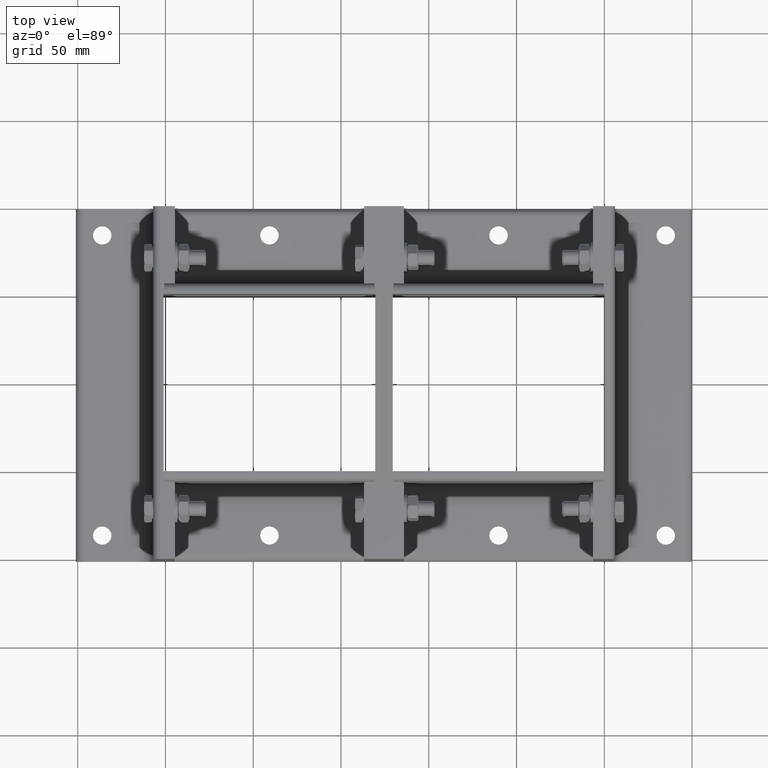
[diagram: clean part render]
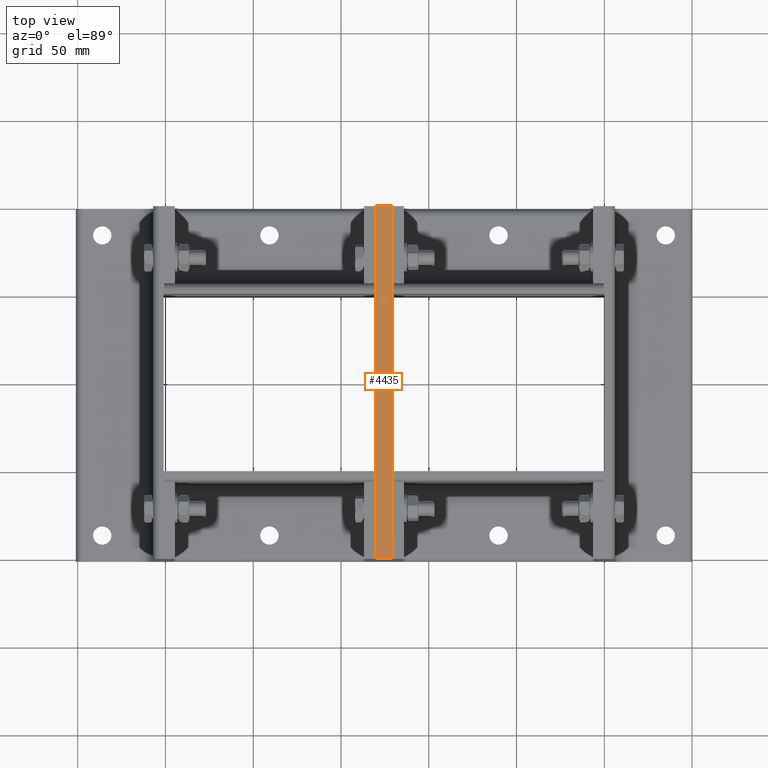
[diagram: same view with one face highlighted and labeled with its STEP entity id]
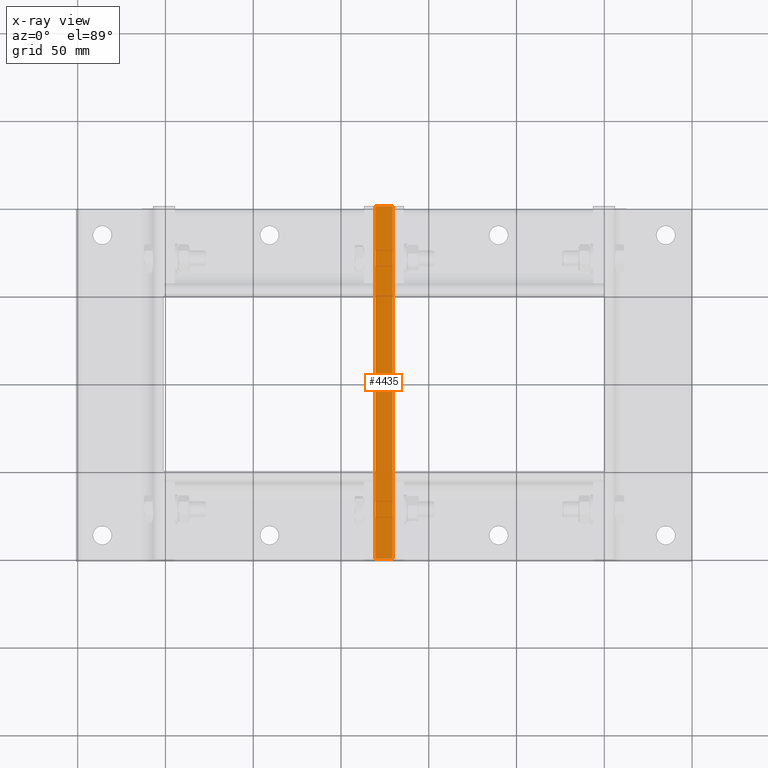
[diagram: x-ray of the same camera — body ghosted, the highlighted face saturated]
A machine part, top view. The second image highlights one B-rep face of the part: STEP entity #4435.
The next image is the same camera in x-ray: the body ghosted, the highlighted face saturated — about 0% of this face is hidden behind the body in this view.
In plain terms, the highlighted planar face has unit normal (-0, 0, 1).
Its self-contained STEP definition (entity closure, byte-faithful):
#4396=CARTESIAN_POINT('',(-100.5,0.0,60.000000000000028));
#4397=DIRECTION('',(0.0,0.0,1.0));
#4398=DIRECTION('',(1.0,0.0,0.0));
#4399=AXIS2_PLACEMENT_3D('',#4396,#4397,#4398);
#4400=PLANE('',#4399);
#4401=CARTESIAN_POINT('',(100.5,0.0,59.999999999999972));
#4402=VERTEX_POINT('',#4401);
#4403=CARTESIAN_POINT('',(-100.5,0.0,60.000000000000028));
#4404=VERTEX_POINT('',#4403);
#4405=CARTESIAN_POINT('',(100.5,0.0,59.999999999999972));
#4406=DIRECTION('',(-1.0,0.0,0.0));
#4407=VECTOR('',#4406,201.0);
#4408=LINE('',#4405,#4407);
#4409=EDGE_CURVE('',#4402,#4404,#4408,.T.);
#4410=ORIENTED_EDGE('',*,*,#4409,.F.);
#4411=CARTESIAN_POINT('',(100.5,10.0,59.999999999999972));
#4412=VERTEX_POINT('',#4411);
#4413=CARTESIAN_POINT('',(100.5,0.0,59.999999999999972));
#4414=DIRECTION('',(0.0,1.0,0.0));
#4415=VECTOR('',#4414,10.0);
#4416=LINE('',#4413,#4415);
#4417=EDGE_CURVE('',#4402,#4412,#4416,.T.);
#4418=ORIENTED_EDGE('',*,*,#4417,.T.);
#4419=CARTESIAN_POINT('',(-100.5,10.0,60.000000000000028));
#4420=VERTEX_POINT('',#4419);
#4421=CARTESIAN_POINT('',(-100.5,10.0,60.000000000000021));
#4422=DIRECTION('',(1.0,0.0,0.0));
#4423=VECTOR('',#4422,201.0);
#4424=LINE('',#4421,#4423);
#4425=EDGE_CURVE('',#4420,#4412,#4424,.T.);
#4426=ORIENTED_EDGE('',*,*,#4425,.F.);
#4427=CARTESIAN_POINT('',(-100.5,0.0,60.000000000000028));
#4428=DIRECTION('',(0.0,1.0,0.0));
#4429=VECTOR('',#4428,10.0);
#4430=LINE('',#4427,#4429);
#4431=EDGE_CURVE('',#4404,#4420,#4430,.T.);
#4432=ORIENTED_EDGE('',*,*,#4431,.F.);
#4433=EDGE_LOOP('',(#4410,#4418,#4426,#4432));
#4434=FACE_OUTER_BOUND('',#4433,.T.);
#4435=ADVANCED_FACE('',(#4434),#4400,.T.);